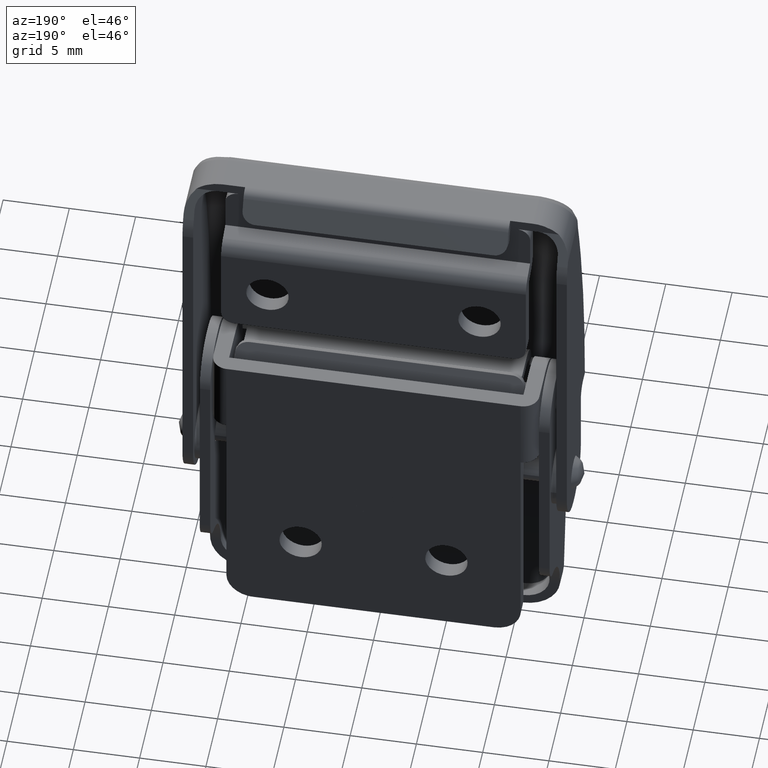
[diagram: clean part render]
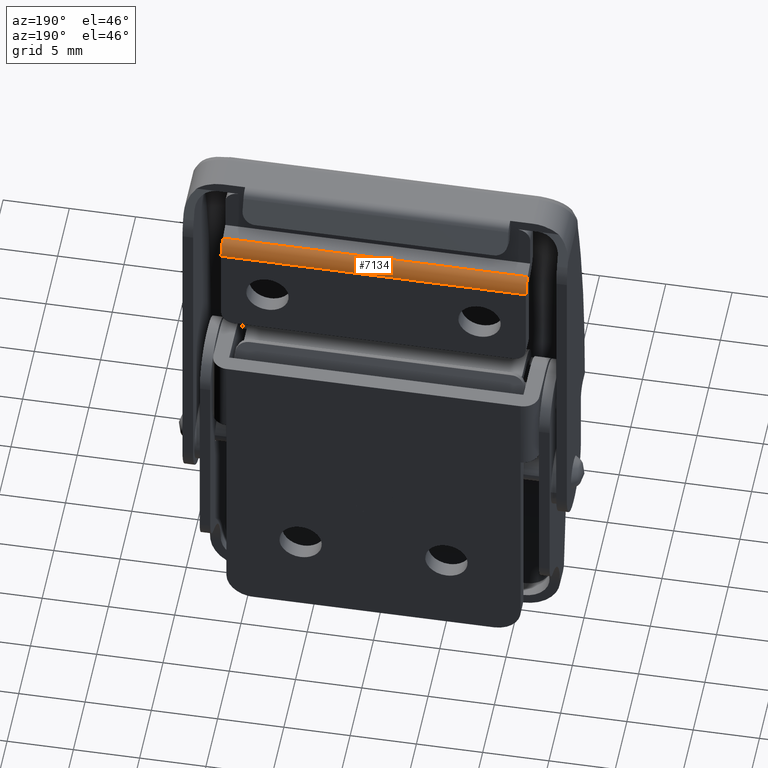
[diagram: same view with one face highlighted and labeled with its STEP entity id]
A machine part, auxiliary view. The second image highlights one B-rep face of the part: STEP entity #7134.
In plain terms, the highlighted face is a freeform B-spline surface patch.
Its self-contained STEP definition (entity closure, byte-faithful):
#7074=CARTESIAN_POINT('',(57.924999999973089,36.285324820302222,30.636452719160332));
#7075=CARTESIAN_POINT('',(82.089374999973302,36.285324820302222,30.636452719160332));
#7076=CARTESIAN_POINT('',(57.924999999973089,37.141703369559778,30.346089640224452));
#7077=CARTESIAN_POINT('',(82.089374999973288,37.141703369559778,30.346089640224452));
#7078=CARTESIAN_POINT('',(57.924999999973089,37.098638382759752,29.442850832295179));
#7079=CARTESIAN_POINT('',(82.089374999973302,37.098638382759752,29.442850832295179));
#7087=(BOUNDED_SURFACE()B_SPLINE_SURFACE(1,2,((#7074,#7076,#7078),(#7075,#7077,#7079)),.UNSPECIFIED.,.F.,.F.,.U.)B_SPLINE_SURFACE_WITH_KNOTS((2,2),(3,3),(0.0,24.164375000000209),(0.0,1.0),.UNSPECIFIED.)GEOMETRIC_REPRESENTATION_ITEM()RATIONAL_B_SPLINE_SURFACE(((1.0,0.798635510047293,1.0),(1.0,0.798635510047293,1.0)))REPRESENTATION_ITEM('')SURFACE());
#7088=CARTESIAN_POINT('',(58.499999999973213,36.314941643193237,30.625976657294501));
#7089=VERTEX_POINT('',#7088);
#7090=CARTESIAN_POINT('',(58.499999999973213,37.099999999998602,29.500000000019700));
#7091=VERTEX_POINT('',#7090);
#7092=CARTESIAN_POINT('',(58.499999999973099,36.314941643193237,30.625976657294501));
#7093=CARTESIAN_POINT('',(58.499999999973099,37.099999999999753,30.336669234744164));
#7094=CARTESIAN_POINT('',(58.499999999973099,37.099999999998630,29.500000000019700));
#7102=(BOUNDED_CURVE()B_SPLINE_CURVE(2,(#7092,#7093,#7094),.UNSPECIFIED.,.F.,.U.)CURVE()GEOMETRIC_REPRESENTATION_ITEM()QUASI_UNIFORM_CURVE()RATIONAL_B_SPLINE_CURVE((1.0,0.820300159287563,1.0))REPRESENTATION_ITEM(''));
#7103=EDGE_CURVE('',#7089,#7091,#7102,.T.);
#7104=ORIENTED_EDGE('',*,*,#7103,.F.);
#7105=CARTESIAN_POINT('',(81.499999999973284,36.314941643193237,30.625976657294501));
#7106=VERTEX_POINT('',#7105);
#7107=CARTESIAN_POINT('',(81.499999999973284,36.314941643193237,30.625976657294501));
#7108=CARTESIAN_POINT('',(58.499999999973213,36.314941643193237,30.625976657294501));
#7109=QUASI_UNIFORM_CURVE('',1,(#7107,#7108),.UNSPECIFIED.,.F.,.U.);
#7110=EDGE_CURVE('',#7106,#7089,#7109,.T.);
#7111=ORIENTED_EDGE('',*,*,#7110,.F.);
#7112=CARTESIAN_POINT('',(81.499999999973284,37.099999999998602,29.500000000019700));
#7113=VERTEX_POINT('',#7112);
#7114=CARTESIAN_POINT('',(81.499999999973284,37.099999999998630,29.500000000019700));
#7115=CARTESIAN_POINT('',(81.499999999973284,37.099999999999753,30.336669234744164));
#7116=CARTESIAN_POINT('',(81.499999999973284,36.314941643193237,30.625976657294501));
#7124=(BOUNDED_CURVE()B_SPLINE_CURVE(2,(#7114,#7115,#7116),.UNSPECIFIED.,.F.,.U.)CURVE()GEOMETRIC_REPRESENTATION_ITEM()QUASI_UNIFORM_CURVE()RATIONAL_B_SPLINE_CURVE((1.0,0.820300159287563,1.0))REPRESENTATION_ITEM(''));
#7125=EDGE_CURVE('',#7113,#7106,#7124,.T.);
#7126=ORIENTED_EDGE('',*,*,#7125,.F.);
#7127=CARTESIAN_POINT('',(58.499999999973213,37.099999999998602,29.500000000019700));
#7128=CARTESIAN_POINT('',(81.499999999973284,37.099999999998602,29.500000000019700));
#7129=QUASI_UNIFORM_CURVE('',1,(#7127,#7128),.UNSPECIFIED.,.F.,.U.);
#7130=EDGE_CURVE('',#7091,#7113,#7129,.T.);
#7131=ORIENTED_EDGE('',*,*,#7130,.F.);
#7132=EDGE_LOOP('',(#7104,#7111,#7126,#7131));
#7133=FACE_OUTER_BOUND('',#7132,.T.);
#7134=ADVANCED_FACE('',(#7133),#7087,.T.);